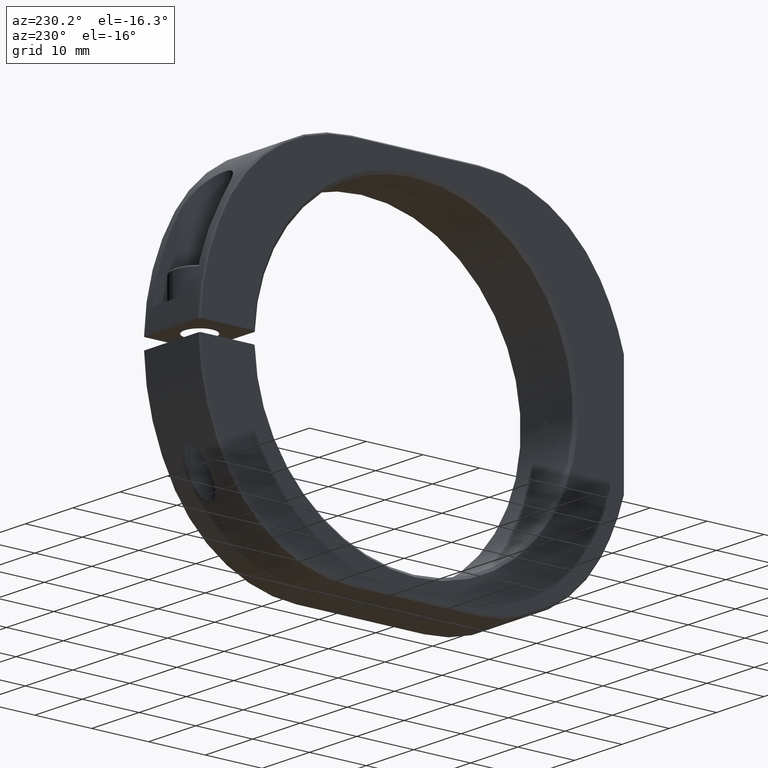
[diagram: clean part render]
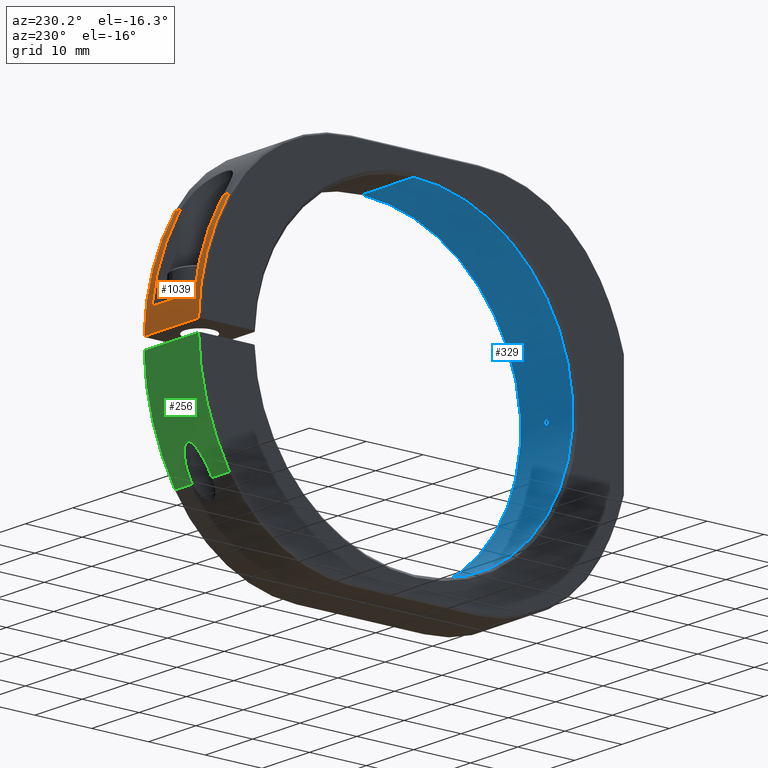
[diagram: same view with three faces highlighted in distinct colors, each labeled with its STEP entity id]
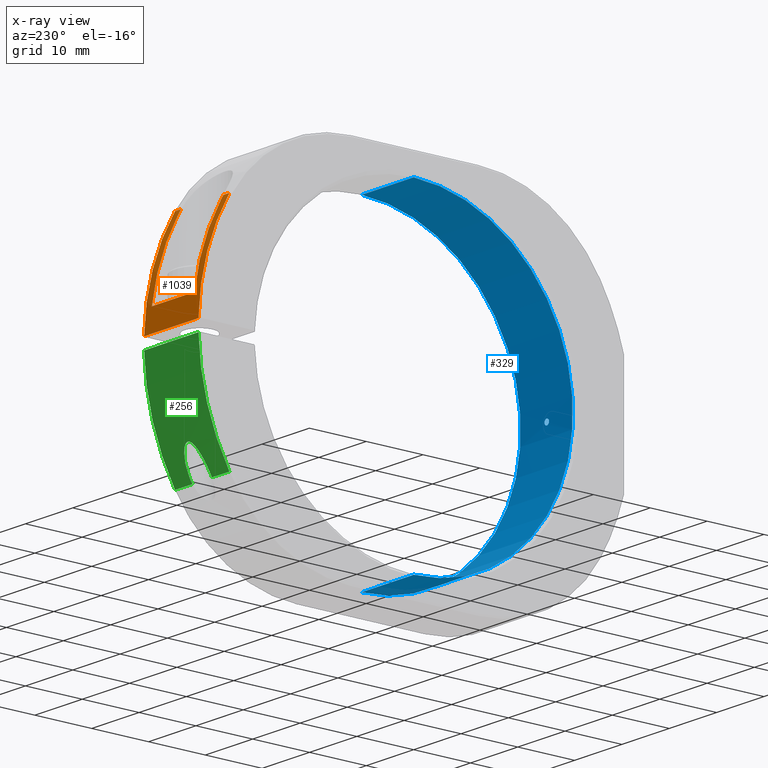
[diagram: x-ray of the same camera — body ghosted, the three highlighted faces saturated]
A machine part, auxiliary view with three faces highlighted in distinct colors.
The next image is the same camera in x-ray (body ghosted, the three faces saturated) — at least one of them is partly hidden behind the body in this view.
Their STEP definitions:

[orange] entity #1039 — the highlighted cylindrical surface (partial cylindrical patch) has radius 38.1 mm, axis along (-1, -0, -0).
#2 = EDGE_CURVE ( 'NONE', #2210, #675, #1866, .T. ) ;
#11 = DIRECTION ( 'NONE',  ( 0.0000000000000000000, 0.0000000000000000000, -1.000000000000000000 ) ) ;
#17 = VERTEX_POINT ( 'NONE', #316 ) ;
#18 = AXIS2_PLACEMENT_3D ( 'NONE', #545, #1812, #1254 ) ;
#32 = VERTEX_POINT ( 'NONE', #1781 ) ;
#37 = VECTOR ( 'NONE', #1639, 1000.000000000000000 ) ;
#92 = ORIENTED_EDGE ( 'NONE', *, *, #232, .T. ) ;
#119 = ORIENTED_EDGE ( 'NONE', *, *, #2, .T. ) ;
#136 = DIRECTION ( 'NONE',  ( -1.000000000000000000, 0.0000000000000000000, 0.0000000000000000000 ) ) ;
#148 = DIRECTION ( 'NONE',  ( 1.000000000000000000, 0.0000000000000000000, 0.0000000000000000000 ) ) ;
#176 = LINE ( 'NONE', #1067, #462 ) ;
#197 = CARTESIAN_POINT ( 'NONE',  ( -11.24143239625171198, -7.520336506184027492, 0.0000000000000000000 ) ) ;
#222 = DIRECTION ( 'NONE',  ( 0.0000000000000000000, 0.0000000000000000000, 1.000000000000000000 ) ) ;
#232 = EDGE_CURVE ( 'NONE', #2157, #517, #176, .T. ) ;
#305 = CARTESIAN_POINT ( 'NONE',  ( -9.991432396251690662, -7.520336506184027492, 0.0000000000000000000 ) ) ;
#306 = CARTESIAN_POINT ( 'NONE',  ( -9.970450545396042585, 25.13249130941601450, 19.63167938931299261 ) ) ;
#316 = CARTESIAN_POINT ( 'NONE',  ( -0.9914323962516881084, 30.25015462114976472, 5.000000000000002665 ) ) ;
#322 = ORIENTED_EDGE ( 'NONE', *, *, #552, .T. ) ;
#330 = CYLINDRICAL_SURFACE ( 'NONE', #1739, 38.10000000000000853 ) ;
#363 = EDGE_CURVE ( 'NONE', #1362, #839, #519, .T. ) ;
#371 = DIRECTION ( 'NONE',  ( 1.000000000000000000, -0.0000000000000000000, -0.0000000000000000000 ) ) ;
#396 = EDGE_CURVE ( 'NONE', #17, #32, #1140, .T. ) ;
#462 = VECTOR ( 'NONE', #683, 1000.000000000000000 ) ;
#469 = ORIENTED_EDGE ( 'NONE', *, *, #1732, .T. ) ;
#482 = CARTESIAN_POINT ( 'NONE',  ( -11.24143239625171198, 25.13249130941602161, 19.63167938931299972 ) ) ;
#517 = VERTEX_POINT ( 'NONE', #614 ) ;
#519 = LINE ( 'NONE', #2125, #37 ) ;
#545 = CARTESIAN_POINT ( 'NONE',  ( -0.9914323962516872202, -7.520336506184027492, 0.0000000000000000000 ) ) ;
#552 = EDGE_CURVE ( 'NONE', #517, #1839, #1529, .T. ) ;
#568 = CARTESIAN_POINT ( 'NONE',  ( -0.9914323962516881084, 25.42399544479476603, 19.14062798887649919 ) ) ;
#578 = CARTESIAN_POINT ( 'NONE',  ( 0.5085676037483114476, -7.520336506184027492, 0.0000000000000000000 ) ) ;
#581 = CIRCLE ( 'NONE', #1191, 38.10000000000000853 ) ;
#591 = ORIENTED_EDGE ( 'NONE', *, *, #2217, .T. ) ;
#597 = FACE_OUTER_BOUND ( 'NONE', #1991, .T. ) ;
#614 = CARTESIAN_POINT ( 'NONE',  ( -9.970450545396042585, 25.13249130941601450, 19.63167938931299261 ) ) ;
#618 = EDGE_CURVE ( 'NONE', #17, #2245, #1824, .T. ) ;
#636 = CARTESIAN_POINT ( 'NONE',  ( -1.012414247107335186, 25.13249130941601450, 19.63167938931299616 ) ) ;
#658 = DIRECTION ( 'NONE',  ( -1.000000000000000000, 3.167720195704063059E-17, 0.0000000000000000000 ) ) ;
#675 = VERTEX_POINT ( 'NONE', #1879 ) ;
#683 = DIRECTION ( 'NONE',  ( 1.000000000000000000, 0.0000000000000000000, 0.0000000000000000000 ) ) ;
#736 = DIRECTION ( 'NONE',  ( -1.000000000000000000, -0.0000000000000000000, -0.0000000000000000000 ) ) ;
#745 = ORIENTED_EDGE ( 'NONE', *, *, #1807, .T. ) ;
#839 = VERTEX_POINT ( 'NONE', #1521 ) ;
#844 = DIRECTION ( 'NONE',  ( -4.553079989440437465E-17, -1.000000000000000000, 0.0000000000000000000 ) ) ;
#985 = ORIENTED_EDGE ( 'NONE', *, *, #618, .F. ) ;
#1039 = ADVANCED_FACE ( 'NONE', ( #597 ), #330, .T. ) ;
#1062 = CARTESIAN_POINT ( 'NONE',  ( -1.012414247107335186, 25.13249130941601450, 19.63167938931299616 ) ) ;
#1067 = CARTESIAN_POINT ( 'NONE',  ( 0.5085676037483114476, 25.13249130941602161, 19.63167938931299972 ) ) ;
#1140 = CIRCLE ( 'NONE', #18, 38.10000000000000853 ) ;
#1191 = AXIS2_PLACEMENT_3D ( 'NONE', #2074, #136, #2094 ) ;
#1199 = CARTESIAN_POINT ( 'NONE',  ( -9.984697020544626156, 25.27950369485717275, 19.38715776620702869 ) ) ;
#1251 = CARTESIAN_POINT ( 'NONE',  ( -9.991432396251688886, 25.56653787331843120, 18.89096990085539574 ) ) ;
#1254 = DIRECTION ( 'NONE',  ( -3.414809992080328407E-17, 1.000000000000000000, 0.0000000000000000000 ) ) ;
#1321 = DIRECTION ( 'NONE',  ( -1.000000000000000000, -0.0000000000000000000, -0.0000000000000000000 ) ) ;
#1334 = VECTOR ( 'NONE', #1321, 1000.000000000000000 ) ;
#1353 = CIRCLE ( 'NONE', #1934, 38.10000000000000853 ) ;
#1362 = VERTEX_POINT ( 'NONE', #1884 ) ;
#1447 = ORIENTED_EDGE ( 'NONE', *, *, #396, .T. ) ;
#1492 = B_SPLINE_CURVE_WITH_KNOTS ( 'NONE', 3,
 ( #1806, #568, #1999, #1062 ),
 .UNSPECIFIED., .F., .F.,
 ( 4, 4 ),
 ( 0.0000000000000000000, 0.0008497603766338589432 ),
 .UNSPECIFIED. ) ;
#1521 = CARTESIAN_POINT ( 'NONE',  ( -11.24143239625171198, 30.56653787331842764, 1.000000000000001998 ) ) ;
#1529 = B_SPLINE_CURVE_WITH_KNOTS ( 'NONE', 3,
 ( #306, #1199, #2282, #1602 ),
 .UNSPECIFIED., .F., .F.,
 ( 4, 4 ),
 ( 0.01860463484730418005, 0.01944876895503940342 ),
 .UNSPECIFIED. ) ;
#1583 = CIRCLE ( 'NONE', #1960, 38.10000000000000853 ) ;
#1602 = CARTESIAN_POINT ( 'NONE',  ( -9.991432396251688886, 25.56653787331843120, 18.89096990085539574 ) ) ;
#1639 = DIRECTION ( 'NONE',  ( -1.000000000000000000, -0.0000000000000000000, -0.0000000000000000000 ) ) ;
#1708 = CARTESIAN_POINT ( 'NONE',  ( 0.5085676037483114476, 30.25015462114976472, 5.000000000000002665 ) ) ;
#1732 = EDGE_CURVE ( 'NONE', #839, #2157, #1583, .T. ) ;
#1739 = AXIS2_PLACEMENT_3D ( 'NONE', #578, #736, #222 ) ;
#1768 = VECTOR ( 'NONE', #148, 1000.000000000000000 ) ;
#1781 = CARTESIAN_POINT ( 'NONE',  ( -0.9914323962516881084, 25.56653787331843120, 18.89096990085539574 ) ) ;
#1806 = CARTESIAN_POINT ( 'NONE',  ( -0.9914323962516881084, 25.56653787331843120, 18.89096990085539574 ) ) ;
#1807 = EDGE_CURVE ( 'NONE', #32, #2210, #1492, .T. ) ;
#1812 = DIRECTION ( 'NONE',  ( 1.000000000000000000, 3.167720195704063059E-17, 0.0000000000000000000 ) ) ;
#1824 = LINE ( 'NONE', #1708, #1334 ) ;
#1839 = VERTEX_POINT ( 'NONE', #1251 ) ;
#1866 = LINE ( 'NONE', #1929, #1768 ) ;
#1879 = CARTESIAN_POINT ( 'NONE',  ( 0.2585676037482939060, 25.13249130941602161, 19.63167938931299972 ) ) ;
#1884 = CARTESIAN_POINT ( 'NONE',  ( 0.2585676037482939060, 30.56653787331842764, 1.000000000000001998 ) ) ;
#1929 = CARTESIAN_POINT ( 'NONE',  ( 0.5085676037483114476, 25.13249130941602161, 19.63167938931299972 ) ) ;
#1934 = AXIS2_PLACEMENT_3D ( 'NONE', #305, #658, #844 ) ;
#1960 = AXIS2_PLACEMENT_3D ( 'NONE', #197, #371, #11 ) ;
#1991 = EDGE_LOOP ( 'NONE', ( #2112, #469, #92, #322, #591, #985, #1447, #745, #119, #2287 ) ) ;
#1999 = CARTESIAN_POINT ( 'NONE',  ( -0.9981905149126529819, 25.27926900551332423, 19.38754811848321324 ) ) ;
#2074 = CARTESIAN_POINT ( 'NONE',  ( 0.2585676037482939060, -7.520336506184027492, 0.0000000000000000000 ) ) ;
#2094 = DIRECTION ( 'NONE',  ( 0.0000000000000000000, -3.551402391763541198E-15, -1.000000000000000000 ) ) ;
#2112 = ORIENTED_EDGE ( 'NONE', *, *, #363, .T. ) ;
#2125 = CARTESIAN_POINT ( 'NONE',  ( 0.5085676037483114476, 30.56653787331842764, 1.000000000000001998 ) ) ;
#2157 = VERTEX_POINT ( 'NONE', #482 ) ;
#2172 = EDGE_CURVE ( 'NONE', #675, #1362, #581, .T. ) ;
#2210 = VERTEX_POINT ( 'NONE', #636 ) ;
#2217 = EDGE_CURVE ( 'NONE', #1839, #2245, #1353, .T. ) ;
#2245 = VERTEX_POINT ( 'NONE', #2259 ) ;
#2259 = CARTESIAN_POINT ( 'NONE',  ( -9.991432396251688886, 30.25015462114976472, 5.000000000000005329 ) ) ;
#2282 = CARTESIAN_POINT ( 'NONE',  ( -9.991432396251688886, 25.42421632885231730, 19.14024111815980334 ) ) ;
#2287 = ORIENTED_EDGE ( 'NONE', *, *, #2172, .T. ) ;

[blue] entity #329 — the highlighted cylindrical surface (partial cylindrical patch) has radius 28 mm, axis along (1, -0, -0).
#8 = DIRECTION ( 'NONE',  ( 0.0000000000000000000, 0.0000000000000000000, -1.000000000000000000 ) ) ;
#12 = ORIENTED_EDGE ( 'NONE', *, *, #2120, .F. ) ;
#40 = ORIENTED_EDGE ( 'NONE', *, *, #864, .T. ) ;
#78 = CARTESIAN_POINT ( 'NONE',  ( -5.458596593352893933, -35.51602150403308400, -0.4931157161508105680 ) ) ;
#96 = CARTESIAN_POINT ( 'NONE',  ( -5.951116272034330024, -35.51992132126567014, -0.1524801070618311272 ) ) ;
#147 = VERTEX_POINT ( 'NONE', #2123 ) ;
#157 = CIRCLE ( 'NONE', #1603, 28.00000000000000000 ) ;
#168 = CARTESIAN_POINT ( 'NONE',  ( -5.115450596892876511, -35.51864993364042533, -0.3273258164586067553 ) ) ;
#191 = DIRECTION ( 'NONE',  ( 1.000000000000000000, -0.0000000000000000000, -0.0000000000000000000 ) ) ;
#223 = CARTESIAN_POINT ( 'NONE',  ( -5.867537777838598423, -35.51865223110576153, 0.3268003614353867659 ) ) ;
#288 = VERTEX_POINT ( 'NONE', #1154 ) ;
#309 = EDGE_CURVE ( 'NONE', #147, #1728, #1476, .T. ) ;
#329 = ADVANCED_FACE ( 'NONE', ( #1733, #978 ), #567, .F. ) ;
#357 = EDGE_LOOP ( 'NONE', ( #40, #1846, #2082, #12 ) ) ;
#454 = VECTOR ( 'NONE', #1005, 1000.000000000000000 ) ;
#537 = VERTEX_POINT ( 'NONE', #1584 ) ;
#567 = CYLINDRICAL_SURFACE ( 'NONE', #2204, 28.00000000000000000 ) ;
#691 = CARTESIAN_POINT ( 'NONE',  ( -4.991216407563672242, -35.52056815160588599, 0.03368216401079122957 ) ) ;
#702 = EDGE_CURVE ( 'NONE', #2297, #1678, #157, .T. ) ;
#724 = ORIENTED_EDGE ( 'NONE', *, *, #1916, .T. ) ;
#741 = CARTESIAN_POINT ( 'NONE',  ( -5.523993079221545699, -35.51602055611937914, 0.4931707128055609068 ) ) ;
#802 = CARTESIAN_POINT ( 'NONE',  ( -11.49143239625168889, -7.520336506184023939, 28.00000000000000000 ) ) ;
#847 = CIRCLE ( 'NONE', #1907, 28.00000000000000000 ) ;
#856 = DIRECTION ( 'NONE',  ( 1.000000000000000000, 0.0000000000000000000, 0.0000000000000000000 ) ) ;
#858 = CARTESIAN_POINT ( 'NONE',  ( -5.000629367477506193, -35.52037755860958868, -0.1019707540896717807 ) ) ;
#864 = EDGE_CURVE ( 'NONE', #537, #288, #847, .T. ) ;
#883 = CARTESIAN_POINT ( 'NONE',  ( -5.031738920177713403, -35.51992147446999581, 0.1524519718949341462 ) ) ;
#943 = ORIENTED_EDGE ( 'NONE', *, *, #309, .T. ) ;
#956 = CARTESIAN_POINT ( 'NONE',  ( -5.981670139554151611, -35.52036861687393809, 0.1033620286555326784 ) ) ;
#978 = FACE_OUTER_BOUND ( 'NONE', #357, .T. ) ;
#1005 = DIRECTION ( 'NONE',  ( 1.000000000000000000, -0.0000000000000000000, -0.0000000000000000000 ) ) ;
#1049 = CARTESIAN_POINT ( 'NONE',  ( -5.910010629763244872, -35.51926535196149359, -0.2729342995605570366 ) ) ;
#1117 = CARTESIAN_POINT ( 'NONE',  ( -5.992221914305415176, -35.52057729056985380, -0.03202591456310527329 ) ) ;
#1126 = CARTESIAN_POINT ( 'NONE',  ( -5.031738920177713403, -35.51992147446999581, 0.1524519718949341462 ) ) ;
#1154 = CARTESIAN_POINT ( 'NONE',  ( -10.99143239625168533, -7.520336506184027492, 28.00000000000000000 ) ) ;
#1180 = DIRECTION ( 'NONE',  ( 0.0000000000000000000, 0.0000000000000000000, -1.000000000000000000 ) ) ;
#1223 = LINE ( 'NONE', #1561, #454 ) ;
#1252 = VECTOR ( 'NONE', #2226, 1000.000000000000000 ) ;
#1267 = EDGE_LOOP ( 'NONE', ( #943, #724 ) ) ;
#1329 = CARTESIAN_POINT ( 'NONE',  ( -5.389303477921118635, -35.51621026941707271, 0.4838742622993437159 ) ) ;
#1368 = B_SPLINE_CURVE_WITH_KNOTS ( 'NONE', 3,
 ( #1126, #1843, #2019, #1329, #741, #2195, #223, #956, #1117, #2033 ),
 .UNSPECIFIED., .F., .F.,
 ( 4, 2, 2, 2, 4 ),
 ( 0.001512571303187965717, 0.001890714128984957200, 0.002268856954781948466, 0.002646999780578939733, 0.003025142606375931433 ),
 .UNSPECIFIED. ) ;
#1418 = CARTESIAN_POINT ( 'NONE',  ( -5.819308816049941768, -35.51789847708058545, -0.3735676918469684749 ) ) ;
#1476 = B_SPLINE_CURVE_WITH_KNOTS ( 'NONE', 3,
 ( #96, #1049, #1418, #2158, #78, #1945, #168, #858, #691, #883 ),
 .UNSPECIFIED., .F., .F.,
 ( 4, 2, 2, 2, 4 ),
 ( 0.0000000000000000000, 0.0003781428257969914291, 0.0007562856515939828583, 0.001134428477390974233, 0.001512571303187965717 ),
 .UNSPECIFIED. ) ;
#1561 = CARTESIAN_POINT ( 'NONE',  ( -11.49143239625168889, -7.520336506184027492, -28.00000000000000000 ) ) ;
#1584 = CARTESIAN_POINT ( 'NONE',  ( -10.99143239625168533, -7.520336506184023939, -28.00000000000000000 ) ) ;
#1603 = AXIS2_PLACEMENT_3D ( 'NONE', #1955, #856, #2286 ) ;
#1611 = LINE ( 'NONE', #802, #1252 ) ;
#1678 = VERTEX_POINT ( 'NONE', #2139 ) ;
#1728 = VERTEX_POINT ( 'NONE', #2127 ) ;
#1733 = FACE_BOUND ( 'NONE', #1267, .T. ) ;
#1801 = CARTESIAN_POINT ( 'NONE',  ( -11.49143239625168889, -7.520336506184027492, 0.0000000000000000000 ) ) ;
#1843 = CARTESIAN_POINT ( 'NONE',  ( -5.072261432791756341, -35.51927479733410564, 0.2712217797790770213 ) ) ;
#1846 = ORIENTED_EDGE ( 'NONE', *, *, #2002, .T. ) ;
#1907 = AXIS2_PLACEMENT_3D ( 'NONE', #2251, #1910, #1180 ) ;
#1910 = DIRECTION ( 'NONE',  ( -1.000000000000000000, -0.0000000000000000000, -0.0000000000000000000 ) ) ;
#1916 = EDGE_CURVE ( 'NONE', #1728, #147, #1368, .T. ) ;
#1945 = CARTESIAN_POINT ( 'NONE',  ( -5.218709906493870676, -35.51729435792135092, -0.4145993926061534718 ) ) ;
#1955 = CARTESIAN_POINT ( 'NONE',  ( 0.008567603748300609001, -7.520336506184027492, 0.0000000000000000000 ) ) ;
#2002 = EDGE_CURVE ( 'NONE', #288, #2297, #1611, .T. ) ;
#2019 = CARTESIAN_POINT ( 'NONE',  ( -5.162410259306628113, -35.51790892942899092, 0.3728544940708157784 ) ) ;
#2033 = CARTESIAN_POINT ( 'NONE',  ( -5.951116272034330024, -35.51992132126567014, -0.1524801070618311272 ) ) ;
#2082 = ORIENTED_EDGE ( 'NONE', *, *, #702, .T. ) ;
#2120 = EDGE_CURVE ( 'NONE', #537, #1678, #1223, .T. ) ;
#2123 = CARTESIAN_POINT ( 'NONE',  ( -5.951116272034330024, -35.51992132126567014, -0.1524801070618311272 ) ) ;
#2127 = CARTESIAN_POINT ( 'NONE',  ( -5.031738920177713403, -35.51992147446999581, 0.1524519718949341462 ) ) ;
#2139 = CARTESIAN_POINT ( 'NONE',  ( 0.008567603748300609001, -7.520336506184027492, -28.00000000000000000 ) ) ;
#2158 = CARTESIAN_POINT ( 'NONE',  ( -5.593747443950775278, -35.51621354570328748, -0.4836299439691807422 ) ) ;
#2195 = CARTESIAN_POINT ( 'NONE',  ( -5.764184650986731384, -35.51729400448882501, 0.4146246662816545636 ) ) ;
#2204 = AXIS2_PLACEMENT_3D ( 'NONE', #1801, #191, #8 ) ;
#2218 = CARTESIAN_POINT ( 'NONE',  ( 0.008567603748300609001, -7.520336506184023939, 28.00000000000000000 ) ) ;
#2226 = DIRECTION ( 'NONE',  ( 1.000000000000000000, -0.0000000000000000000, -0.0000000000000000000 ) ) ;
#2251 = CARTESIAN_POINT ( 'NONE',  ( -10.99143239625168533, -7.520336506184027492, 0.0000000000000000000 ) ) ;
#2286 = DIRECTION ( 'NONE',  ( 0.0000000000000000000, 0.0000000000000000000, -1.000000000000000000 ) ) ;
#2297 = VERTEX_POINT ( 'NONE', #2218 ) ;

[green] entity #256 — the highlighted cylindrical surface (partial cylindrical patch) has radius 38.1 mm, axis along (-1, -0, -0).
#57 = VERTEX_POINT ( 'NONE', #1938 ) ;
#82 = CARTESIAN_POINT ( 'NONE',  ( -3.421332405447780278, 25.20560767770753330, -19.51006696192052914 ) ) ;
#105 = CARTESIAN_POINT ( 'NONE',  ( -6.035432600262689462, 27.59710221460774449, -14.77771956566467892 ) ) ;
#161 = VERTEX_POINT ( 'NONE', #877 ) ;
#186 = CIRCLE ( 'NONE', #2136, 38.10000000000000853 ) ;
#190 = EDGE_CURVE ( 'NONE', #1230, #1887, #541, .T. ) ;
#205 = CARTESIAN_POINT ( 'NONE',  ( -7.591432396252761450, 25.56653787331881489, -18.89096990085520744 ) ) ;
#231 = CYLINDRICAL_SURFACE ( 'NONE', #1959, 38.10000000000000853 ) ;
#256 = ADVANCED_FACE ( 'NONE', ( #865 ), #231, .T. ) ;
#265 = ORIENTED_EDGE ( 'NONE', *, *, #190, .T. ) ;
#286 = CARTESIAN_POINT ( 'NONE',  ( -11.24143239625168889, 30.56653787331842764, -0.9999999999999983347 ) ) ;
#289 = CARTESIAN_POINT ( 'NONE',  ( -5.602374707087161454, 27.66686760027820924, -14.61063543961441979 ) ) ;
#290 = CARTESIAN_POINT ( 'NONE',  ( 0.2585676037482695921, 25.13249130941601450, -19.63167938931300682 ) ) ;
#294 = CARTESIAN_POINT ( 'NONE',  ( 0.5085676037483114476, 25.13249130941601450, -19.63167938931300682 ) ) ;
#297 = B_SPLINE_CURVE_WITH_KNOTS ( 'NONE', 3,
 ( #1875, #82, #1530, #970, #1149, #1346 ),
 .UNSPECIFIED., .F., .F.,
 ( 4, 2, 4 ),
 ( 0.01968840307541951107, 0.02011252169520317060, 0.02053664031498683012 ),
 .UNSPECIFIED. ) ;
#303 = DIRECTION ( 'NONE',  ( -1.000000000000000000, 0.0000000000000000000, 0.0000000000000000000 ) ) ;
#344 = ORIENTED_EDGE ( 'NONE', *, *, #584, .T. ) ;
#394 = LINE ( 'NONE', #1689, #2073 ) ;
#408 = CARTESIAN_POINT ( 'NONE',  ( -3.391432396251691905, 25.56653787331843120, -18.89096990085539574 ) ) ;
#418 = VECTOR ( 'NONE', #647, 1000.000000000000000 ) ;
#422 = CARTESIAN_POINT ( 'NONE',  ( -7.561573023472855759, 25.20580003905620359, -19.50974701262470390 ) ) ;
#425 = B_SPLINE_CURVE_WITH_KNOTS ( 'NONE', 3,
 ( #977, #793, #1159, #773, #422, #2229 ),
 .UNSPECIFIED., .F., .F.,
 ( 4, 2, 4 ),
 ( 0.01100616601503821845, 0.01143026427682567250, 0.01185436253861312655 ),
 .UNSPECIFIED. ) ;
#431 = DIRECTION ( 'NONE',  ( -1.000000000000000000, -0.0000000000000000000, -0.0000000000000000000 ) ) ;
#441 = CARTESIAN_POINT ( 'NONE',  ( -3.428449993109492056, 26.01735159751816084, -18.08421825163589958 ) ) ;
#442 = VERTEX_POINT ( 'NONE', #205 ) ;
#447 = CARTESIAN_POINT ( 'NONE',  ( -7.012207387079999243, 27.02051787422431772, -16.08054516275715784 ) ) ;
#487 = ORIENTED_EDGE ( 'NONE', *, *, #1187, .T. ) ;
#541 = LINE ( 'NONE', #1622, #1967 ) ;
#576 = CARTESIAN_POINT ( 'NONE',  ( 0.5085676037483114476, -7.520336506184027492, 0.0000000000000000000 ) ) ;
#584 = EDGE_CURVE ( 'NONE', #442, #57, #425, .T. ) ;
#611 = CARTESIAN_POINT ( 'NONE',  ( -3.391432396251691905, 25.56653787331843120, -18.89096990085539574 ) ) ;
#617 = CARTESIAN_POINT ( 'NONE',  ( -7.449776222199241182, 26.33286240873289330, -17.48206609008264678 ) ) ;
#626 = CARTESIAN_POINT ( 'NONE',  ( -7.300971856028732887, 26.63824258628180885, -16.87756749263608214 ) ) ;
#633 = CARTESIAN_POINT ( 'NONE',  ( -4.519811392496029256, 27.43423609386204021, -15.16000048092375607 ) ) ;
#641 = CARTESIAN_POINT ( 'NONE',  ( -5.037210257752585463, 27.61972070523792766, -14.72374137550439066 ) ) ;
#647 = DIRECTION ( 'NONE',  ( -1.000000000000000000, -0.0000000000000000000, -0.0000000000000000000 ) ) ;
#717 = EDGE_LOOP ( 'NONE', ( #720, #1076, #265, #861, #1253, #487, #1014, #344 ) ) ;
#720 = ORIENTED_EDGE ( 'NONE', *, *, #1918, .T. ) ;
#773 = CARTESIAN_POINT ( 'NONE',  ( -7.572905245696401444, 25.27878723463693689, -19.38680254831198368 ) ) ;
#775 = B_SPLINE_CURVE_WITH_KNOTS ( 'NONE', 3,
 ( #611, #1190, #441, #1371, #1167, #2234, #1905, #1359, #1737, #633, #784, #1162, #641, #808, #1897, #289, #1137, #1726, #105, #1701, #2212, #815, #954, #447, #2070, #1881, #626, #1713, #617, #2055, #2225, #1124 ),
 .UNSPECIFIED., .F., .F.,
 ( 4, 2, 2, 2, 2, 2, 2, 2, 2, 2, 2, 2, 2, 2, 2, 4 ),
 ( 0.0000000000000000000, 0.001375770751879775138, 0.002751541503759550276, 0.003439426879699438496, 0.004127312255639326716, 0.004815197631579218839, 0.005159140319549164466, 0.005503083007519110094, 0.005847025695489057456, 0.006190968383459003084, 0.006878853759398891737, 0.007566739135338780391, 0.008254624511278669044, 0.008942509887218558565, 0.009630395263158448085, 0.01100616601503821845 ),
 .UNSPECIFIED. ) ;
#784 = CARTESIAN_POINT ( 'NONE',  ( -4.667511373373196548, 27.50740236309912845, -14.98965150816433756 ) ) ;
#793 = CARTESIAN_POINT ( 'NONE',  ( -7.591432396251688530, 25.49575272099675516, -19.01494762434406027 ) ) ;
#808 = CARTESIAN_POINT ( 'NONE',  ( -5.252186448818048525, 27.65570968746591873, -14.63755290671751652 ) ) ;
#810 = CARTESIAN_POINT ( 'NONE',  ( 0.2585676037482695921, -7.520336506184027492, 0.0000000000000000000 ) ) ;
#815 = CARTESIAN_POINT ( 'NONE',  ( -6.713325836889145748, 27.28111229484253286, -15.50829763249341831 ) ) ;
#829 = LINE ( 'NONE', #294, #418 ) ;
#861 = ORIENTED_EDGE ( 'NONE', *, *, #1348, .T. ) ;
#865 = FACE_OUTER_BOUND ( 'NONE', #717, .T. ) ;
#877 = CARTESIAN_POINT ( 'NONE',  ( -11.24143239625168889, 25.13249130941601450, -19.63167938931300682 ) ) ;
#954 = CARTESIAN_POINT ( 'NONE',  ( -6.821776484107111571, 27.19656824839469422, -15.69684931193378929 ) ) ;
#970 = CARTESIAN_POINT ( 'NONE',  ( -3.395042346742673800, 25.42350172301928168, -19.13985574318254024 ) ) ;
#977 = CARTESIAN_POINT ( 'NONE',  ( -7.591432396252761450, 25.56653787331881489, -18.89096990085520744 ) ) ;
#979 = CARTESIAN_POINT ( 'NONE',  ( -11.24143239625168889, -7.520336506184027492, 0.0000000000000000000 ) ) ;
#996 = AXIS2_PLACEMENT_3D ( 'NONE', #979, #1327, #1339 ) ;
#1014 = ORIENTED_EDGE ( 'NONE', *, *, #2289, .T. ) ;
#1076 = ORIENTED_EDGE ( 'NONE', *, *, #2304, .T. ) ;
#1124 = CARTESIAN_POINT ( 'NONE',  ( -7.591432396252761450, 25.56653787331881489, -18.89096990085520744 ) ) ;
#1137 = CARTESIAN_POINT ( 'NONE',  ( -5.719293089355029558, 27.65706266557300808, -14.63429897834804017 ) ) ;
#1149 = CARTESIAN_POINT ( 'NONE',  ( -3.391432396251692349, 25.49541115230221422, -19.01554586998988228 ) ) ;
#1159 = CARTESIAN_POINT ( 'NONE',  ( -7.587862836712190528, 25.42402800928196527, -19.13895184917468839 ) ) ;
#1162 = CARTESIAN_POINT ( 'NONE',  ( -4.937660569581893810, 27.59441532743023018, -14.78410427863012977 ) ) ;
#1167 = CARTESIAN_POINT ( 'NONE',  ( -3.670074423610630632, 26.63879011398157459, -16.88071903715199795 ) ) ;
#1187 = EDGE_CURVE ( 'NONE', #1412, #1997, #297, .T. ) ;
#1190 = CARTESIAN_POINT ( 'NONE',  ( -3.391432396251691905, 25.79726120845787918, -18.48686603290984110 ) ) ;
#1230 = VERTEX_POINT ( 'NONE', #286 ) ;
#1253 = ORIENTED_EDGE ( 'NONE', *, *, #2263, .T. ) ;
#1327 = DIRECTION ( 'NONE',  ( 1.000000000000000000, -0.0000000000000000000, -0.0000000000000000000 ) ) ;
#1339 = DIRECTION ( 'NONE',  ( 0.0000000000000000000, 0.0000000000000000000, -1.000000000000000000 ) ) ;
#1346 = CARTESIAN_POINT ( 'NONE',  ( -3.391432396251691905, 25.56653787331843120, -18.89096990085539574 ) ) ;
#1348 = EDGE_CURVE ( 'NONE', #1887, #2108, #186, .T. ) ;
#1351 = DIRECTION ( 'NONE',  ( 0.0000000000000000000, -1.775701195881770599E-15, -1.000000000000000000 ) ) ;
#1359 = CARTESIAN_POINT ( 'NONE',  ( -4.157952303196284838, 27.19398483147522327, -15.70256118254715183 ) ) ;
#1371 = CARTESIAN_POINT ( 'NONE',  ( -3.568025482581786090, 26.43810844077008682, -17.28118890292837406 ) ) ;
#1412 = VERTEX_POINT ( 'NONE', #2274 ) ;
#1517 = CARTESIAN_POINT ( 'NONE',  ( 0.2585676037482695921, 30.56653787331842764, -0.9999999999999983347 ) ) ;
#1530 = CARTESIAN_POINT ( 'NONE',  ( -3.410000551223124621, 25.27852389019643908, -19.38724611285728727 ) ) ;
#1622 = CARTESIAN_POINT ( 'NONE',  ( 0.5085676037483114476, 30.56653787331842764, -0.9999999999999983347 ) ) ;
#1689 = CARTESIAN_POINT ( 'NONE',  ( 0.5085676037483114476, 25.13249130941601450, -19.63167938931300682 ) ) ;
#1701 = CARTESIAN_POINT ( 'NONE',  ( -6.308630362062340069, 27.51042535694250546, -14.98258037752098026 ) ) ;
#1713 = CARTESIAN_POINT ( 'NONE',  ( -7.406309318644672679, 26.43615297229318273, -17.28055648359729091 ) ) ;
#1726 = CARTESIAN_POINT ( 'NONE',  ( -5.937466851632827947, 27.62159691556158592, -14.71926066276456346 ) ) ;
#1737 = CARTESIAN_POINT ( 'NONE',  ( -4.265060325468252422, 27.27778173728500377, -15.51575737587589465 ) ) ;
#1810 = CIRCLE ( 'NONE', #996, 38.10000000000000853 ) ;
#1875 = CARTESIAN_POINT ( 'NONE',  ( -3.436778269551894915, 25.13249130941601450, -19.63167938931300682 ) ) ;
#1881 = CARTESIAN_POINT ( 'NONE',  ( -7.238788324757208237, 26.73747467151594392, -16.67516672165575997 ) ) ;
#1887 = VERTEX_POINT ( 'NONE', #1517 ) ;
#1897 = CARTESIAN_POINT ( 'NONE',  ( -5.368340148163585290, 27.66619057239631374, -14.61226583824293712 ) ) ;
#1905 = CARTESIAN_POINT ( 'NONE',  ( -3.968190686262154543, 27.01791220585190345, -16.08614029316693816 ) ) ;
#1918 = EDGE_CURVE ( 'NONE', #57, #161, #394, .T. ) ;
#1938 = CARTESIAN_POINT ( 'NONE',  ( -7.546086522951481079, 25.13249130941601450, -19.63167938931300682 ) ) ;
#1959 = AXIS2_PLACEMENT_3D ( 'NONE', #576, #1985, #2187 ) ;
#1967 = VECTOR ( 'NONE', #2302, 1000.000000000000000 ) ;
#1985 = DIRECTION ( 'NONE',  ( -1.000000000000000000, -0.0000000000000000000, -0.0000000000000000000 ) ) ;
#1997 = VERTEX_POINT ( 'NONE', #408 ) ;
#2055 = CARTESIAN_POINT ( 'NONE',  ( -7.554738988531609856, 26.01622803673610917, -18.08633973092259239 ) ) ;
#2070 = CARTESIAN_POINT ( 'NONE',  ( -7.094321058652348633, 26.92855610454878246, -16.27675059021791881 ) ) ;
#2073 = VECTOR ( 'NONE', #431, 1000.000000000000000 ) ;
#2108 = VERTEX_POINT ( 'NONE', #290 ) ;
#2136 = AXIS2_PLACEMENT_3D ( 'NONE', #810, #303, #1351 ) ;
#2187 = DIRECTION ( 'NONE',  ( 0.0000000000000000000, 0.0000000000000000000, 1.000000000000000000 ) ) ;
#2212 = CARTESIAN_POINT ( 'NONE',  ( -6.455522208634971726, 27.43825362654495237, -15.15074618757564728 ) ) ;
#2225 = CARTESIAN_POINT ( 'NONE',  ( -7.591432396251669878, 25.79616423825858362, -18.48878733792339446 ) ) ;
#2229 = CARTESIAN_POINT ( 'NONE',  ( -7.546086522951481079, 25.13249130941601450, -19.63167938931300682 ) ) ;
#2234 = CARTESIAN_POINT ( 'NONE',  ( -3.885607072362713854, 26.92506371487773720, -16.28413507917512248 ) ) ;
#2263 = EDGE_CURVE ( 'NONE', #2108, #1412, #829, .T. ) ;
#2274 = CARTESIAN_POINT ( 'NONE',  ( -3.436778269551894915, 25.13249130941601450, -19.63167938931300682 ) ) ;
#2289 = EDGE_CURVE ( 'NONE', #1997, #442, #775, .T. ) ;
#2302 = DIRECTION ( 'NONE',  ( 1.000000000000000000, 0.0000000000000000000, 0.0000000000000000000 ) ) ;
#2304 = EDGE_CURVE ( 'NONE', #161, #1230, #1810, .T. ) ;